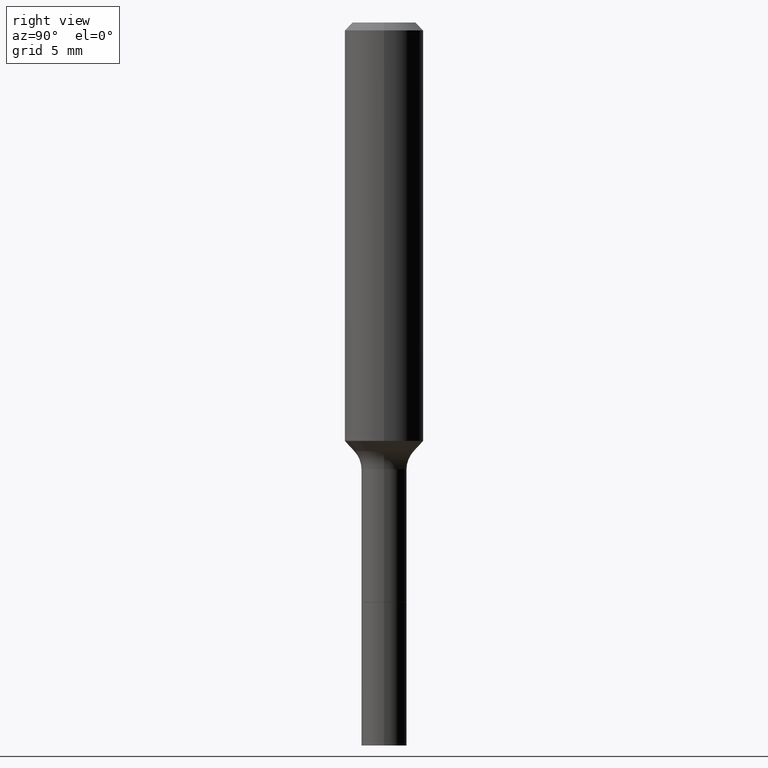
[diagram: clean part render]
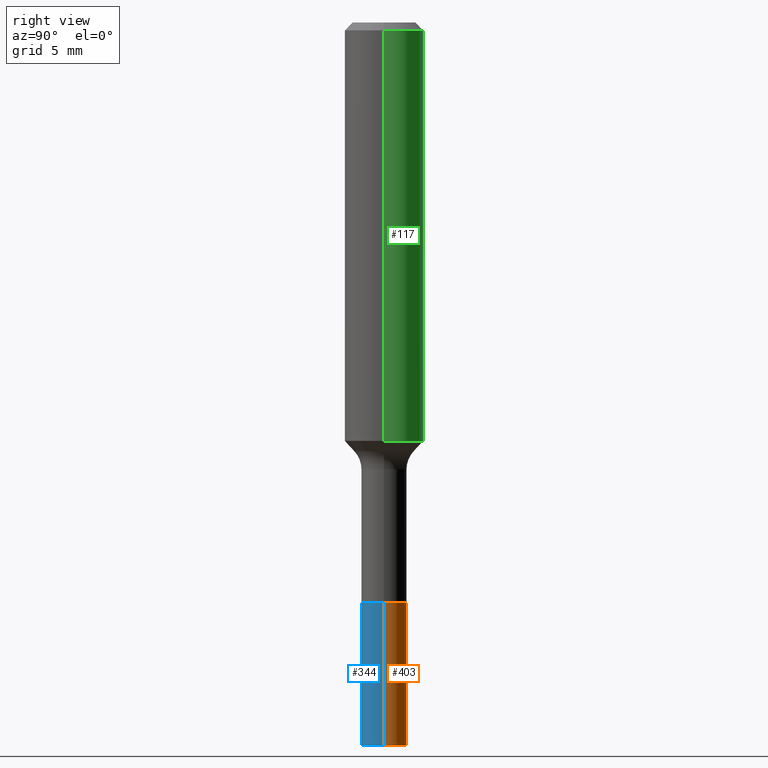
[diagram: same view with three faces highlighted in distinct colors, each labeled with its STEP entity id]
A machine part, right view with three faces highlighted in distinct colors.
Their STEP definitions:

[orange] entity #403 — the highlighted cylindrical surface (edge-blend (fillet) strip) has radius 1.7272 mm, axis along (-0, 0, 1).
#1 = EDGE_LOOP ( 'NONE', ( #206, #467, #70, #57 ) ) ;
#3 = VERTEX_POINT ( 'NONE', #85 ) ;
#36 = DIRECTION ( 'NONE',  ( 1.000000000000000000, -6.982962677686260400E-15, 0.000000000000000000 ) ) ;
#51 = EDGE_CURVE ( 'NONE', #397, #145, #349, .T. ) ;
#54 = EDGE_CURVE ( 'NONE', #3, #351, #176, .T. ) ;
#57 = ORIENTED_EDGE ( 'NONE', *, *, #54, .F. ) ;
#70 = ORIENTED_EDGE ( 'NONE', *, *, #208, .F. ) ;
#75 = CARTESIAN_POINT ( 'NONE',  ( 4.246312035059870225E-29, -6.062608196767237407E-15, -1.736399999999999721 ) ) ;
#85 = CARTESIAN_POINT ( 'NONE',  ( 0.06800000000000014366, -8.035295153213613748E-15, -2.165399999999999991 ) ) ;
#101 = AXIS2_PLACEMENT_3D ( 'NONE', #236, #123, #36 ) ;
#108 = CARTESIAN_POINT ( 'NONE',  ( 0.06800000000000007427, -6.537449658849904522E-15, -1.736399999999999721 ) ) ;
#114 = DIRECTION ( 'NONE',  ( 1.000000000000000000, -6.982962677686267499E-15, 0.000000000000000000 ) ) ;
#120 = VECTOR ( 'NONE', #395, 39.37007874015748143 ) ;
#123 = DIRECTION ( 'NONE',  ( -2.445468806185136597E-29, 3.491481338843145583E-15, 1.000000000000000000 ) ) ;
#145 = VERTEX_POINT ( 'NONE', #508 ) ;
#169 = DIRECTION ( 'NONE',  ( 1.000000000000000000, -6.982962677686260400E-15, 0.000000000000000000 ) ) ;
#176 = LINE ( 'NONE', #108, #250 ) ;
#190 = CIRCLE ( 'NONE', #101, 0.06800000000000014366 ) ;
#206 = ORIENTED_EDGE ( 'NONE', *, *, #332, .T. ) ;
#208 = EDGE_CURVE ( 'NONE', #351, #145, #459, .T. ) ;
#227 = CARTESIAN_POINT ( 'NONE',  ( -0.06800000000000007427, -5.579439136450368852E-15, -1.736399999999999721 ) ) ;
#236 = CARTESIAN_POINT ( 'NONE',  ( 5.295418152913294345E-29, -7.560453691130947423E-15, -2.165399999999999991 ) ) ;
#247 = CARTESIAN_POINT ( 'NONE',  ( 0.06800000000000000488, -6.537449658849903733E-15, -1.736399999999999721 ) ) ;
#250 = VECTOR ( 'NONE', #424, 39.37007874015748143 ) ;
#293 = FACE_OUTER_BOUND ( 'NONE', #1, .T. ) ;
#332 = EDGE_CURVE ( 'NONE', #3, #397, #190, .T. ) ;
#336 = AXIS2_PLACEMENT_3D ( 'NONE', #357, #479, #169 ) ;
#338 = CYLINDRICAL_SURFACE ( 'NONE', #493, 0.06800000000000007427 ) ;
#349 = LINE ( 'NONE', #227, #120 ) ;
#351 = VERTEX_POINT ( 'NONE', #247 ) ;
#357 = CARTESIAN_POINT ( 'NONE',  ( 4.246312035059870225E-29, -6.062608196767237407E-15, -1.736399999999999721 ) ) ;
#395 = DIRECTION ( 'NONE',  ( -2.445468806185136877E-29, 3.491481338843145188E-15, 1.000000000000000000 ) ) ;
#397 = VERTEX_POINT ( 'NONE', #449 ) ;
#403 = ADVANCED_FACE ( 'NONE', ( #293 ), #338, .T. ) ;
#424 = DIRECTION ( 'NONE',  ( -2.445468806185136877E-29, 3.491481338843145188E-15, 1.000000000000000000 ) ) ;
#449 = CARTESIAN_POINT ( 'NONE',  ( -0.06800000000000015754, -6.328361883632222282E-15, -2.165399999999999991 ) ) ;
#459 = CIRCLE ( 'NONE', #336, 0.06800000000000000488 ) ;
#467 = ORIENTED_EDGE ( 'NONE', *, *, #51, .T. ) ;
#474 = DIRECTION ( 'NONE',  ( -2.445468806185136597E-29, 3.491481338843145583E-15, 1.000000000000000000 ) ) ;
#479 = DIRECTION ( 'NONE',  ( -2.445468806185136597E-29, 3.491481338843145583E-15, 1.000000000000000000 ) ) ;
#493 = AXIS2_PLACEMENT_3D ( 'NONE', #75, #474, #114 ) ;
#508 = CARTESIAN_POINT ( 'NONE',  ( -0.06800000000000000488, -6.328361883632223860E-15, -1.736399999999999721 ) ) ;

[blue] entity #344 — the highlighted cylindrical surface (edge-blend (fillet) strip) has radius 1.7272 mm, axis along (-0, 0, 1).
#3 = VERTEX_POINT ( 'NONE', #85 ) ;
#13 = CARTESIAN_POINT ( 'NONE',  ( 4.246312035059870225E-29, -6.062608196767237407E-15, -1.736399999999999721 ) ) ;
#33 = DIRECTION ( 'NONE',  ( 1.000000000000000000, -6.982962677686267499E-15, 0.000000000000000000 ) ) ;
#41 = CIRCLE ( 'NONE', #257, 0.06800000000000000488 ) ;
#51 = EDGE_CURVE ( 'NONE', #397, #145, #349, .T. ) ;
#54 = EDGE_CURVE ( 'NONE', #3, #351, #176, .T. ) ;
#77 = CARTESIAN_POINT ( 'NONE',  ( 5.295418152913294345E-29, -7.560453691130947423E-15, -2.165399999999999991 ) ) ;
#85 = CARTESIAN_POINT ( 'NONE',  ( 0.06800000000000014366, -8.035295153213613748E-15, -2.165399999999999991 ) ) ;
#108 = CARTESIAN_POINT ( 'NONE',  ( 0.06800000000000007427, -6.537449658849904522E-15, -1.736399999999999721 ) ) ;
#120 = VECTOR ( 'NONE', #395, 39.37007874015748143 ) ;
#145 = VERTEX_POINT ( 'NONE', #508 ) ;
#160 = DIRECTION ( 'NONE',  ( -2.445468806185136597E-29, 3.491481338843145583E-15, 1.000000000000000000 ) ) ;
#171 = DIRECTION ( 'NONE',  ( -2.445468806185136597E-29, 3.491481338843145583E-15, 1.000000000000000000 ) ) ;
#176 = LINE ( 'NONE', #108, #250 ) ;
#192 = ORIENTED_EDGE ( 'NONE', *, *, #51, .F. ) ;
#227 = CARTESIAN_POINT ( 'NONE',  ( -0.06800000000000007427, -5.579439136450368852E-15, -1.736399999999999721 ) ) ;
#243 = ORIENTED_EDGE ( 'NONE', *, *, #301, .T. ) ;
#247 = CARTESIAN_POINT ( 'NONE',  ( 0.06800000000000000488, -6.537449658849903733E-15, -1.736399999999999721 ) ) ;
#250 = VECTOR ( 'NONE', #424, 39.37007874015748143 ) ;
#257 = AXIS2_PLACEMENT_3D ( 'NONE', #13, #171, #494 ) ;
#272 = EDGE_LOOP ( 'NONE', ( #192, #243, #457, #283 ) ) ;
#283 = ORIENTED_EDGE ( 'NONE', *, *, #452, .F. ) ;
#286 = DIRECTION ( 'NONE',  ( -2.445468806185136597E-29, 3.491481338843145583E-15, 1.000000000000000000 ) ) ;
#290 = CARTESIAN_POINT ( 'NONE',  ( 4.246312035059870225E-29, -6.062608196767237407E-15, -1.736399999999999721 ) ) ;
#301 = EDGE_CURVE ( 'NONE', #397, #3, #394, .T. ) ;
#317 = FACE_OUTER_BOUND ( 'NONE', #272, .T. ) ;
#319 = AXIS2_PLACEMENT_3D ( 'NONE', #290, #160, #33 ) ;
#344 = ADVANCED_FACE ( 'NONE', ( #317 ), #363, .T. ) ;
#349 = LINE ( 'NONE', #227, #120 ) ;
#351 = VERTEX_POINT ( 'NONE', #247 ) ;
#352 = AXIS2_PLACEMENT_3D ( 'NONE', #77, #286, #405 ) ;
#363 = CYLINDRICAL_SURFACE ( 'NONE', #319, 0.06800000000000007427 ) ;
#394 = CIRCLE ( 'NONE', #352, 0.06800000000000014366 ) ;
#395 = DIRECTION ( 'NONE',  ( -2.445468806185136877E-29, 3.491481338843145188E-15, 1.000000000000000000 ) ) ;
#397 = VERTEX_POINT ( 'NONE', #449 ) ;
#405 = DIRECTION ( 'NONE',  ( 1.000000000000000000, -6.982962677686260400E-15, 0.000000000000000000 ) ) ;
#424 = DIRECTION ( 'NONE',  ( -2.445468806185136877E-29, 3.491481338843145188E-15, 1.000000000000000000 ) ) ;
#449 = CARTESIAN_POINT ( 'NONE',  ( -0.06800000000000015754, -6.328361883632222282E-15, -2.165399999999999991 ) ) ;
#452 = EDGE_CURVE ( 'NONE', #145, #351, #41, .T. ) ;
#457 = ORIENTED_EDGE ( 'NONE', *, *, #54, .T. ) ;
#494 = DIRECTION ( 'NONE',  ( 1.000000000000000000, -6.982962677686260400E-15, 0.000000000000000000 ) ) ;
#508 = CARTESIAN_POINT ( 'NONE',  ( -0.06800000000000000488, -6.328361883632223860E-15, -1.736399999999999721 ) ) ;

[green] entity #117 — the highlighted cylindrical surface (partial cylindrical patch) has radius 2.9997 mm, axis along (-0, 0, 1).
#6 = ORIENTED_EDGE ( 'NONE', *, *, #253, .F. ) ;
#18 = CARTESIAN_POINT ( 'NONE',  ( 0.1180999999999999966, -9.071566814582237199E-16, -0.02362000000000014435 ) ) ;
#19 = AXIS2_PLACEMENT_3D ( 'NONE', #188, #342, #458 ) ;
#21 = VERTEX_POINT ( 'NONE', #48 ) ;
#22 = FACE_OUTER_BOUND ( 'NONE', #289, .T. ) ;
#31 = DIRECTION ( 'NONE',  ( 1.000000000000000000, -6.982962677686266711E-15, 4.876176775795936353E-29 ) ) ;
#48 = CARTESIAN_POINT ( 'NONE',  ( -0.1180999999999999966, -1.389778401389283023E-15, -0.02362000000000014435 ) ) ;
#78 = EDGE_CURVE ( 'NONE', #179, #21, #503, .T. ) ;
#99 = VERTEX_POINT ( 'NONE', #18 ) ;
#103 = CARTESIAN_POINT ( 'NONE',  ( -0.1181000000000001354, -3.536238984487769574E-15, -1.253161489578567878 ) ) ;
#107 = EDGE_CURVE ( 'NONE', #404, #179, #166, .T. ) ;
#117 = ADVANCED_FACE ( 'NONE', ( #22 ), #498, .T. ) ;
#134 = AXIS2_PLACEMENT_3D ( 'NONE', #429, #388, #31 ) ;
#146 = DIRECTION ( 'NONE',  ( -2.445468806185136877E-29, 3.491481338843145188E-15, 1.000000000000000000 ) ) ;
#155 = ORIENTED_EDGE ( 'NONE', *, *, #107, .T. ) ;
#159 = EDGE_CURVE ( 'NONE', #404, #99, #390, .T. ) ;
#166 = CIRCLE ( 'NONE', #19, 0.1181000000000001493 ) ;
#179 = VERTEX_POINT ( 'NONE', #103 ) ;
#181 = CARTESIAN_POINT ( 'NONE',  ( -0.1181000000000000660, 8.391509709326787887E-16, -5.809262341591047287E-30 ) ) ;
#188 = CARTESIAN_POINT ( 'NONE',  ( 3.064567331876887429E-29, -4.375389955420448954E-15, -1.253161489578567878 ) ) ;
#199 = VECTOR ( 'NONE', #146, 39.37007874015748143 ) ;
#202 = ORIENTED_EDGE ( 'NONE', *, *, #159, .F. ) ;
#203 = DIRECTION ( 'NONE',  ( 1.000000000000000000, -6.982962677686266711E-15, 0.000000000000000000 ) ) ;
#213 = CARTESIAN_POINT ( 'NONE',  ( 0.1181000000000001354, -5.200077847655198006E-15, -1.253161489578567878 ) ) ;
#223 = DIRECTION ( 'NONE',  ( -2.445468806185136877E-29, 3.491481338843145188E-15, 1.000000000000000000 ) ) ;
#239 = DIRECTION ( 'NONE',  ( -2.445468806185136597E-29, 3.491481338843145583E-15, 1.000000000000000000 ) ) ;
#253 = EDGE_CURVE ( 'NONE', #99, #21, #496, .T. ) ;
#265 = AXIS2_PLACEMENT_3D ( 'NONE', #284, #239, #203 ) ;
#284 = CARTESIAN_POINT ( 'NONE',  ( 5.776197320209328408E-31, -8.246878922347560526E-17, -0.02362000000000014435 ) ) ;
#289 = EDGE_LOOP ( 'NONE', ( #155, #441, #6, #202 ) ) ;
#342 = DIRECTION ( 'NONE',  ( -2.445468806185136597E-29, 3.491481338843145583E-15, 1.000000000000000000 ) ) ;
#388 = DIRECTION ( 'NONE',  ( -2.445468806185136597E-29, 3.491481338843145583E-15, 1.000000000000000000 ) ) ;
#390 = LINE ( 'NONE', #426, #199 ) ;
#404 = VERTEX_POINT ( 'NONE', #213 ) ;
#426 = CARTESIAN_POINT ( 'NONE',  ( 0.1181000000000000660, -8.246878922347485584E-16, 5.758764772215003944E-30 ) ) ;
#429 = CARTESIAN_POINT ( 'NONE',  ( 0.000000000000000000, 0.000000000000000000, 0.000000000000000000 ) ) ;
#441 = ORIENTED_EDGE ( 'NONE', *, *, #78, .T. ) ;
#458 = DIRECTION ( 'NONE',  ( 1.000000000000000000, -6.982962677686264344E-15, 0.000000000000000000 ) ) ;
#496 = CIRCLE ( 'NONE', #265, 0.1180999999999999966 ) ;
#498 = CYLINDRICAL_SURFACE ( 'NONE', #134, 0.1181000000000000660 ) ;
#503 = LINE ( 'NONE', #181, #515 ) ;
#515 = VECTOR ( 'NONE', #223, 39.37007874015748143 ) ;